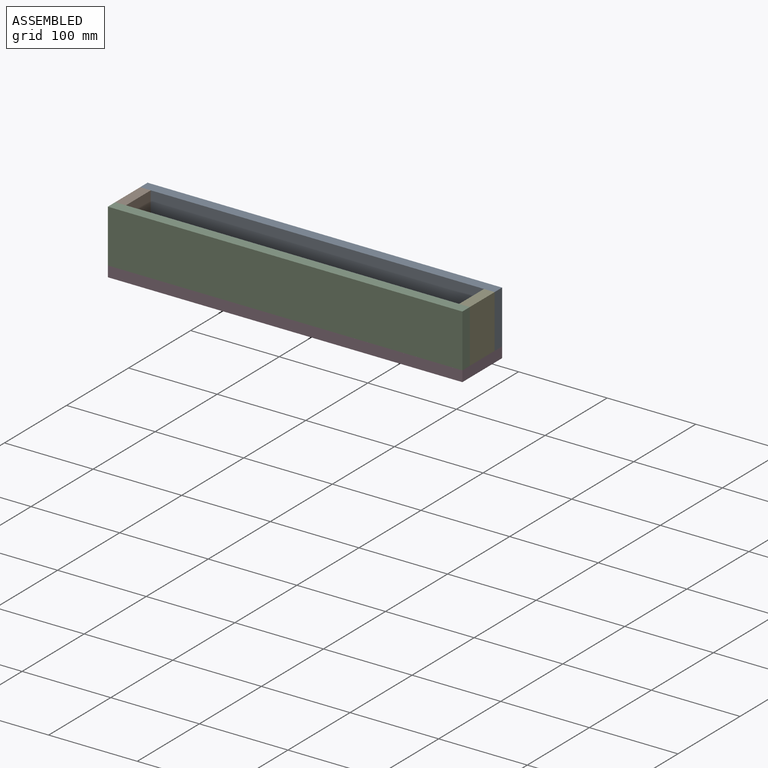
[diagram: assembled view]
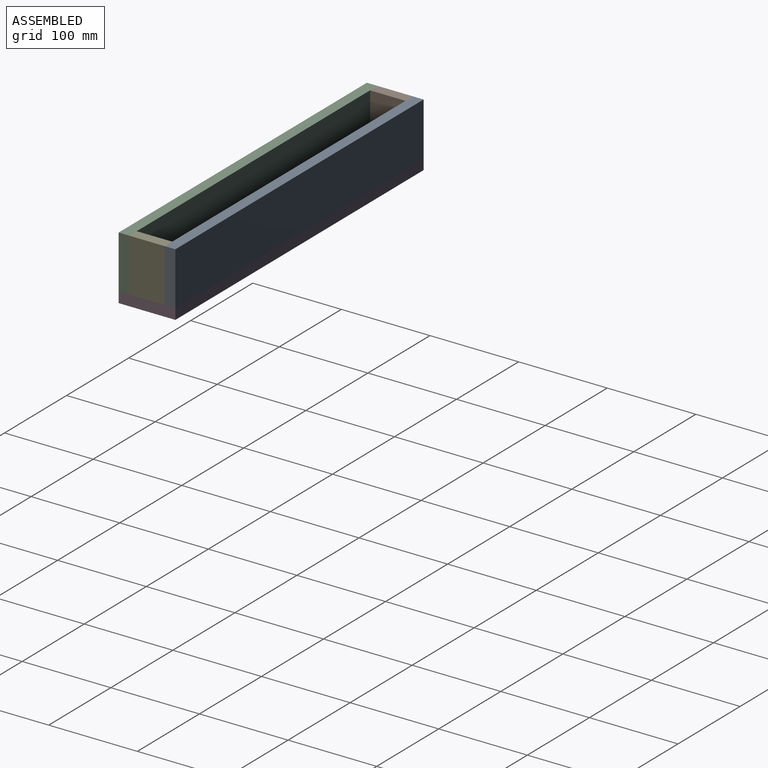
[diagram: assembled view, second angle]
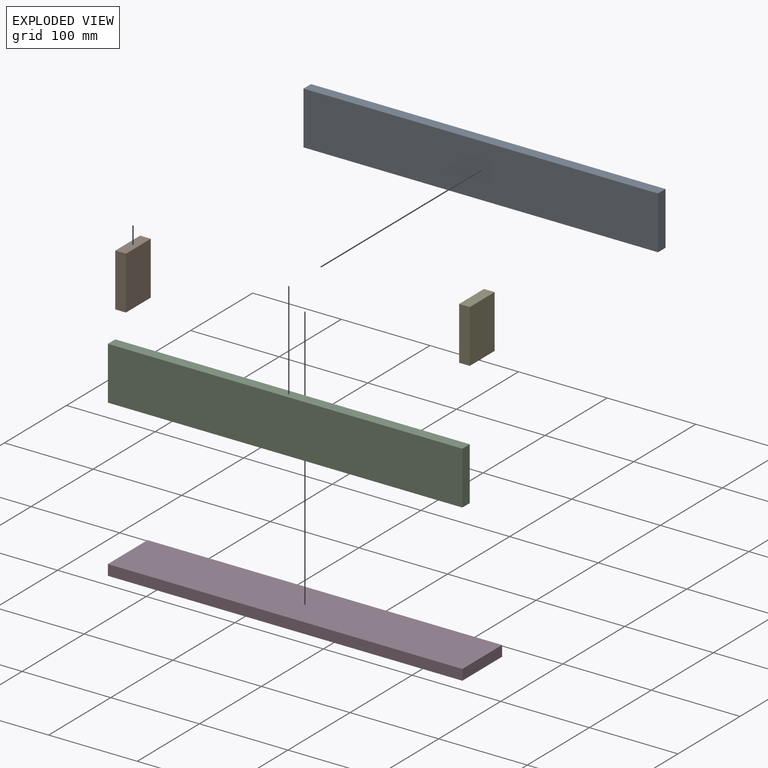
[diagram: exploded view]
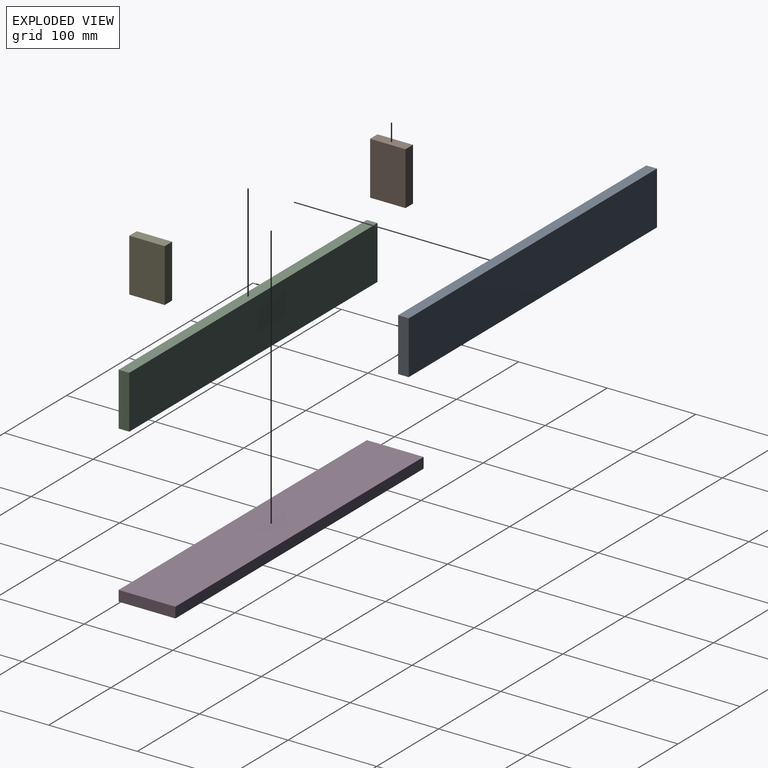
[diagram: exploded view, second angle]
ASSEMBLY  parts=5 mates=4
PART A: 6 faces, bbox 400x12x60 mm
  f0: plane 60x12mm, normal (-1,0,0), area 720mm2, adj f1,f3,f4,f5
  f1: plane 400x12mm, normal (0,0,-1), area 4800mm2, adj f0,f2,f4,f5
  f2: plane 60x12mm, normal (1,0,0), area 720mm2, adj f1,f3,f4,f5
  f3: plane 400x12mm, normal (0,0,1), area 4800mm2, adj f0,f2,f4,f5
  f4: plane 400x60mm, normal (0,-1,0), area 24000mm2, adj f0,f1,f2,f3
  f5: plane 400x60mm, normal (0,1,0), area 24000mm2, adj f0,f1,f2,f3
PART B: 6 faces, bbox 12x40x60 mm
  f0: plane 60x12mm, normal (0,-1,0), area 720mm2, adj f1,f3,f4,f5
  f1: plane 40x12mm, normal (0,0,-1), area 480mm2, adj f0,f2,f4,f5
  f2: plane 60x12mm, normal (0,1,0), area 720mm2, adj f1,f3,f4,f5
  f3: plane 40x12mm, normal (0,0,1), area 480mm2, adj f0,f2,f4,f5
  f4: plane 60x40mm, normal (1,0,0), area 2400mm2, adj f0,f1,f2,f3
  f5: plane 60x40mm, normal (-1,0,0), area 2400mm2, adj f0,f1,f2,f3
PART C: same geometry as A
PART D: 6 faces, bbox 400x64x12 mm
  f0: plane 64x12mm, normal (-1,0,0), area 768mm2, adj f1,f3,f4,f5
  f1: plane 400x12mm, normal (0,-1,0), area 4800mm2, adj f0,f2,f4,f5
  f2: plane 64x12mm, normal (1,0,0), area 768mm2, adj f1,f3,f4,f5
  f3: plane 400x12mm, normal (0,1,0), area 4800mm2, adj f0,f2,f4,f5
  f4: plane 400x64mm, normal (0,0,-1), area 25600mm2, adj f0,f1,f2,f3
  f5: plane 400x64mm, normal (0,0,1), area 25600mm2, adj f0,f1,f2,f3
PART E: same geometry as B
PLACE A rot(axis=(0,0,-1),180deg) t=(552.71,-42.22,-22.88)mm
PLACE B rot(axis=(0,0,-1),180deg) t=(164.71,-42.22,-22.88)mm
PLACE C rot(axis=(0,0,-1),180deg) t=(552.71,-94.22,-22.88)mm
PLACE D rot(axis=(0,0,-1),180deg) t=(552.71,-121.03,-22.88)mm
PLACE E rot(axis=(0,0,-1),180deg) t=(552.71,-42.22,-22.88)mm
MATE fastened B.f1 <-> A.f1  axis (0,0,-1) through (152.71,-42.22,-22.88)mm
MATE fastened A.f1 <-> D.f5  axis (0,0,-1) through (552.71,-30.22,-22.88)mm
MATE fastened C.f1 <-> D.f5  axis (0,0,-1) through (552.71,-94.22,-22.88)mm
MATE fastened E.f2 <-> C.f4  axis (0,-1,0) through (552.71,-82.22,-22.88)mm
